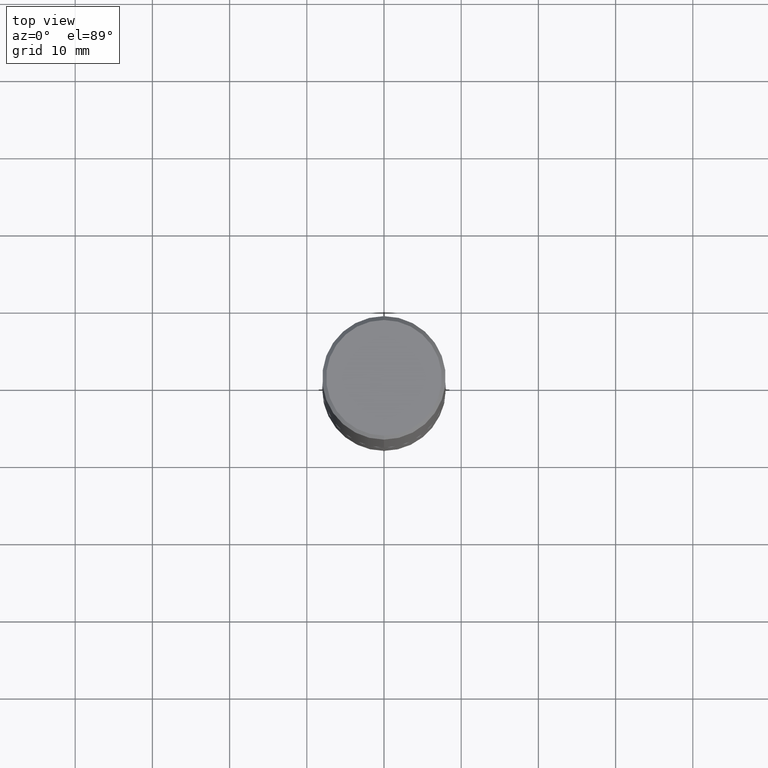
[diagram: clean part render]
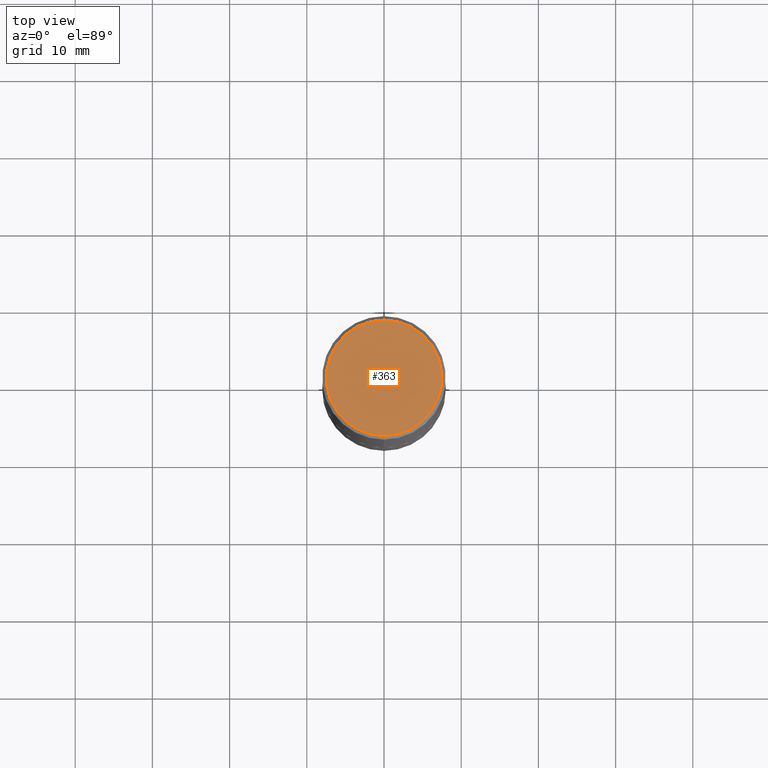
[diagram: same view with one face highlighted and labeled with its STEP entity id]
A machine part, top view. The second image highlights one B-rep face of the part: STEP entity #363.
In plain terms, the highlighted planar face has unit normal (0, -0, -1).
Its self-contained STEP definition (entity closure, byte-faithful):
#37 = CARTESIAN_POINT ( 'NONE',  ( 2.129454468560427362E-15, 0.2949500000000001010, -1.127988208164095593E-15 ) ) ;
#50 = DIRECTION ( 'NONE',  ( -2.445752866996063776E-29, 3.491074547594160525E-15, 1.000000000000000000 ) ) ;
#54 = PLANE ( 'NONE',  #249 ) ;
#71 = EDGE_CURVE ( 'NONE', #120, #167, #406, .T. ) ;
#82 = DIRECTION ( 'NONE',  ( -6.982962677686265922E-15, -1.000000000000000000, 3.491074547594160130E-15 ) ) ;
#119 = CIRCLE ( 'NONE', #339, 0.2949500000000001010 ) ;
#120 = VERTEX_POINT ( 'NONE', #37 ) ;
#161 = FACE_OUTER_BOUND ( 'NONE', #367, .T. ) ;
#167 = VERTEX_POINT ( 'NONE', #176 ) ;
#176 = CARTESIAN_POINT ( 'NONE',  ( -2.092108864420428426E-15, -0.2949500000000001010, 9.313966674617003266E-16 ) ) ;
#206 = EDGE_CURVE ( 'NONE', #167, #120, #119, .T. ) ;
#249 = AXIS2_PLACEMENT_3D ( 'NONE', #366, #284, #336 ) ;
#284 = DIRECTION ( 'NONE',  ( 2.445752866996063495E-29, -3.491074547594160525E-15, -1.000000000000000000 ) ) ;
#304 = DIRECTION ( 'NONE',  ( -6.982962677686265922E-15, -1.000000000000000000, 3.491074547594160130E-15 ) ) ;
#308 = AXIS2_PLACEMENT_3D ( 'NONE', #404, #402, #82 ) ;
#311 = ORIENTED_EDGE ( 'NONE', *, *, #206, .T. ) ;
#331 = CARTESIAN_POINT ( 'NONE',  ( 2.404071621500281892E-45, -3.431578620092266308E-31, -9.829577035119759600E-17 ) ) ;
#336 = DIRECTION ( 'NONE',  ( 6.982962677686265922E-15, 1.000000000000000000, -3.491074547594160525E-15 ) ) ;
#339 = AXIS2_PLACEMENT_3D ( 'NONE', #331, #50, #304 ) ;
#363 = ADVANCED_FACE ( 'NONE', ( #161 ), #54, .F. ) ;
#366 = CARTESIAN_POINT ( 'NONE',  ( 2.059624841783564852E-15, 0.2949500000000001010, -1.078840322988496727E-15 ) ) ;
#367 = EDGE_LOOP ( 'NONE', ( #381, #311 ) ) ;
#381 = ORIENTED_EDGE ( 'NONE', *, *, #71, .T. ) ;
#402 = DIRECTION ( 'NONE',  ( -2.445752866996063776E-29, 3.491074547594160525E-15, 1.000000000000000000 ) ) ;
#404 = CARTESIAN_POINT ( 'NONE',  ( 2.404071621500281892E-45, -3.431578620092266308E-31, -9.829577035119759600E-17 ) ) ;
#406 = CIRCLE ( 'NONE', #308, 0.2949500000000001010 ) ;